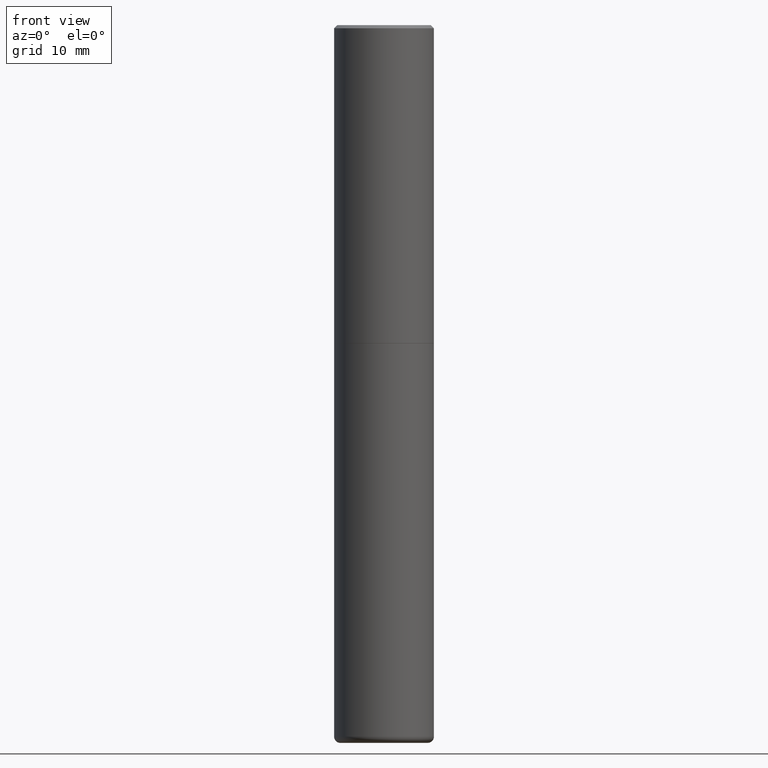
[diagram: clean part render]
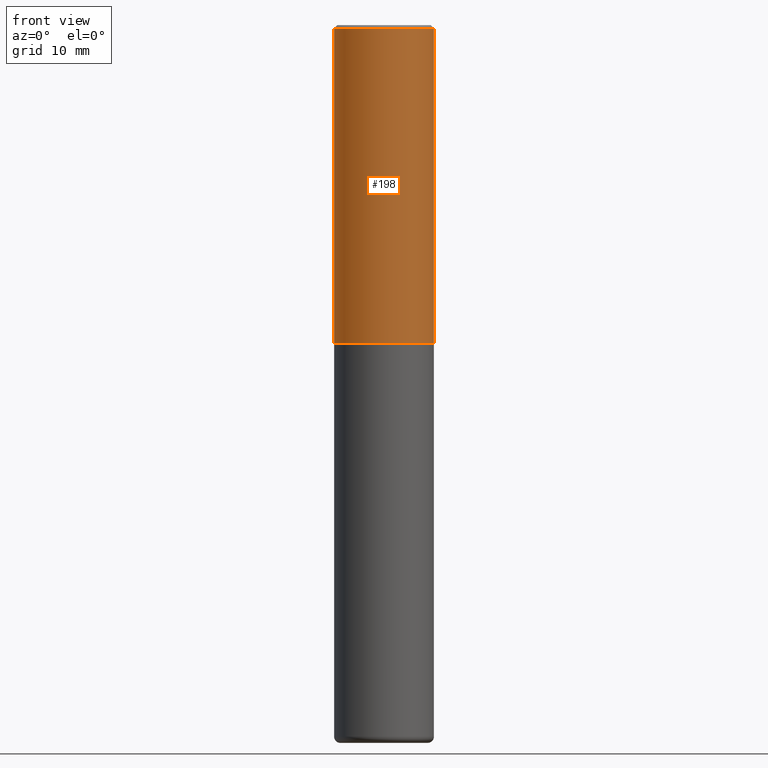
[diagram: same view with one face highlighted and labeled with its STEP entity id]
A machine part, front view. The second image highlights one B-rep face of the part: STEP entity #198.
In plain terms, the highlighted cylindrical surface (partial cylindrical patch) has radius 7.9997 mm, axis along (-0, 0, 1).
Its self-contained STEP definition (entity closure, byte-faithful):
#7 = EDGE_CURVE ( 'NONE', #359, #339, #26, .T. ) ;
#10 = CARTESIAN_POINT ( 'NONE',  ( -0.3149499999999999522, 2.129454468560426178E-15, -0.02000000000000006981 ) ) ;
#11 = EDGE_CURVE ( 'NONE', #158, #89, #416, .T. ) ;
#26 = CIRCLE ( 'NONE', #386, 0.3149499999999999522 ) ;
#47 = DIRECTION ( 'NONE',  ( 1.000000000000000000, -6.982962677686267499E-15, 0.000000000000000000 ) ) ;
#65 = EDGE_CURVE ( 'NONE', #158, #359, #296, .T. ) ;
#89 = VERTEX_POINT ( 'NONE', #195 ) ;
#118 = DIRECTION ( 'NONE',  ( -2.445468806185136597E-29, 3.491481338843145583E-15, 1.000000000000000000 ) ) ;
#120 = CARTESIAN_POINT ( 'NONE',  ( 0.000000000000000000, 0.000000000000000000, 0.000000000000000000 ) ) ;
#142 = DIRECTION ( 'NONE',  ( -2.445468806185136597E-29, 3.491481338843145583E-15, 1.000000000000000000 ) ) ;
#158 = VERTEX_POINT ( 'NONE', #413 ) ;
#171 = VECTOR ( 'NONE', #405, 39.37007874015748143 ) ;
#195 = CARTESIAN_POINT ( 'NONE',  ( 0.3149500000000002853, -9.206337994261599363E-15, -2.006899999999999906 ) ) ;
#196 = EDGE_LOOP ( 'NONE', ( #391, #219, #293, #235 ) ) ;
#198 = ADVANCED_FACE ( 'NONE', ( #319 ), #280, .T. ) ;
#207 = LINE ( 'NONE', #300, #285 ) ;
#219 = ORIENTED_EDGE ( 'NONE', *, *, #11, .T. ) ;
#235 = ORIENTED_EDGE ( 'NONE', *, *, #7, .F. ) ;
#243 = EDGE_CURVE ( 'NONE', #89, #339, #207, .T. ) ;
#251 = AXIS2_PLACEMENT_3D ( 'NONE', #410, #255, #47 ) ;
#255 = DIRECTION ( 'NONE',  ( -2.445468806185136597E-29, 3.491481338843145583E-15, 1.000000000000000000 ) ) ;
#274 = DIRECTION ( 'NONE',  ( 1.000000000000000000, -6.982962677686266711E-15, 0.000000000000000000 ) ) ;
#280 = CYLINDRICAL_SURFACE ( 'NONE', #312, 0.3149500000000001743 ) ;
#285 = VECTOR ( 'NONE', #340, 39.37007874015748143 ) ;
#293 = ORIENTED_EDGE ( 'NONE', *, *, #243, .T. ) ;
#296 = LINE ( 'NONE', #363, #171 ) ;
#300 = CARTESIAN_POINT ( 'NONE',  ( 0.3149500000000001743, -2.199284095337290660E-15, 1.535751875536930690E-29 ) ) ;
#306 = CARTESIAN_POINT ( 'NONE',  ( 4.890937612370289799E-31, -6.982962677686315028E-17, -0.02000000000000006981 ) ) ;
#312 = AXIS2_PLACEMENT_3D ( 'NONE', #120, #118, #379 ) ;
#319 = FACE_OUTER_BOUND ( 'NONE', #196, .T. ) ;
#331 = CARTESIAN_POINT ( 'NONE',  ( 0.3149499999999999522, -2.230543471175006661E-15, -0.02000000000000006981 ) ) ;
#339 = VERTEX_POINT ( 'NONE', #331 ) ;
#340 = DIRECTION ( 'NONE',  ( -2.445468806185136877E-29, 3.491481338843145188E-15, 1.000000000000000000 ) ) ;
#359 = VERTEX_POINT ( 'NONE', #10 ) ;
#363 = CARTESIAN_POINT ( 'NONE',  ( -0.3149500000000001743, 2.237854346276436774E-15, -1.549218606675783237E-29 ) ) ;
#379 = DIRECTION ( 'NONE',  ( 1.000000000000000000, -6.982962677686265922E-15, 4.876176775795935232E-29 ) ) ;
#386 = AXIS2_PLACEMENT_3D ( 'NONE', #306, #142, #274 ) ;
#391 = ORIENTED_EDGE ( 'NONE', *, *, #65, .F. ) ;
#405 = DIRECTION ( 'NONE',  ( -2.445468806185136877E-29, 3.491481338843145188E-15, 1.000000000000000000 ) ) ;
#410 = CARTESIAN_POINT ( 'NONE',  ( 4.907811347132950267E-29, -7.007053898924307914E-15, -2.006899999999999906 ) ) ;
#413 = CARTESIAN_POINT ( 'NONE',  ( -0.3149500000000002853, -1.300587416574145677E-15, -2.006899999999999906 ) ) ;
#416 = CIRCLE ( 'NONE', #251, 0.3149500000000002853 ) ;